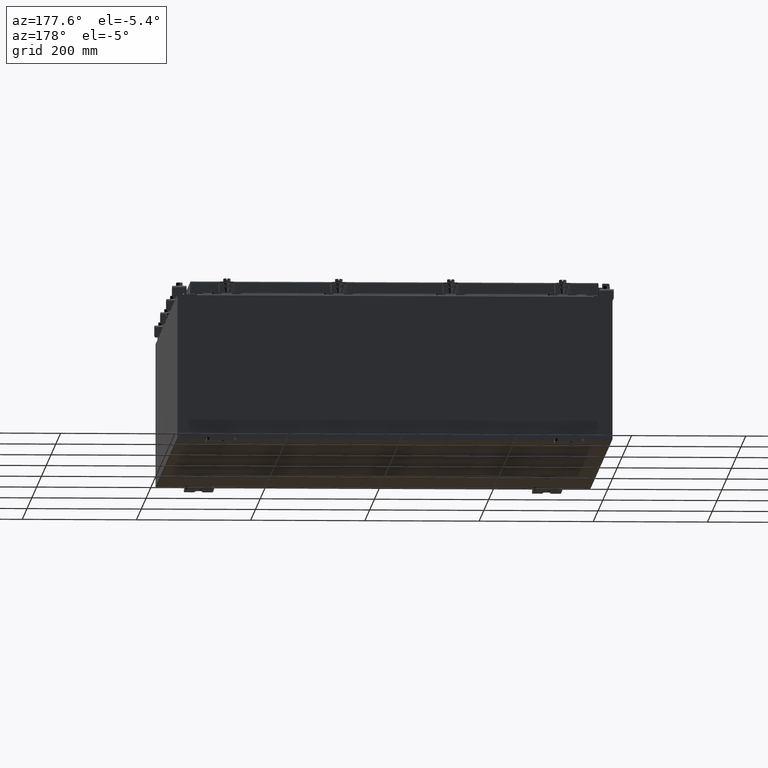
[diagram: clean part render]
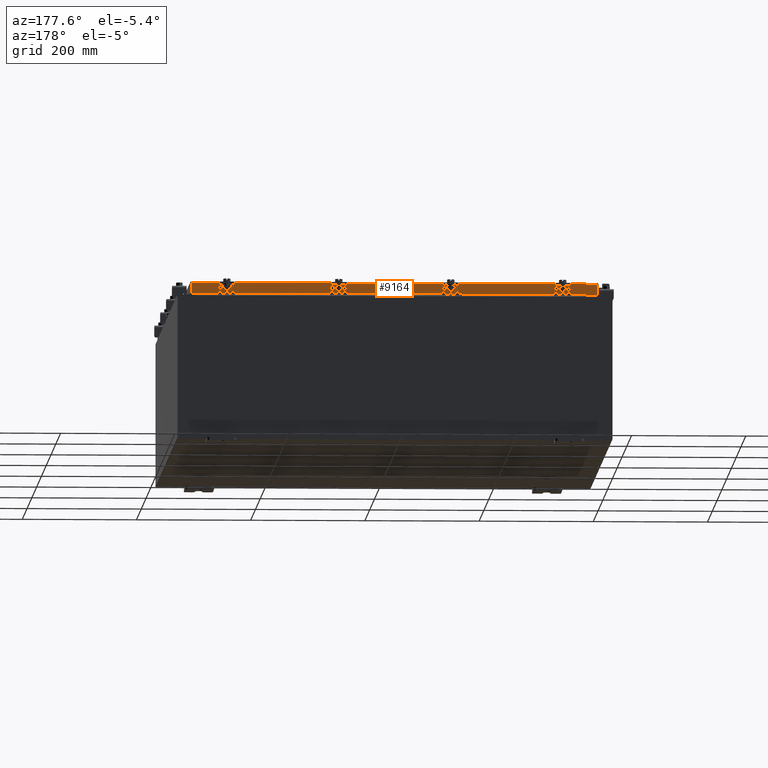
[diagram: same view with one face highlighted and labeled with its STEP entity id]
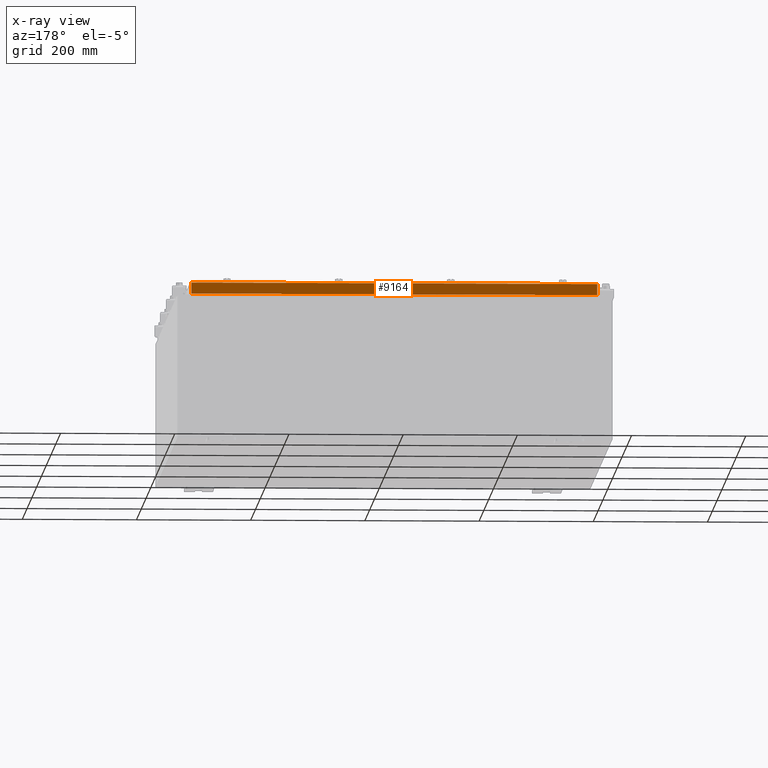
[diagram: x-ray of the same camera — body ghosted, the highlighted face saturated]
A machine part, auxiliary view. The second image highlights one B-rep face of the part: STEP entity #9164.
The next image is the same camera in x-ray: the body ghosted, the highlighted face saturated — about 0% of this face is hidden behind the body in this view.
In plain terms, the highlighted planar face has unit normal (0, -1, -0).
Its self-contained STEP definition (entity closure, byte-faithful):
#34 = EDGE_CURVE ( 'NONE', #1283, #8137, #4734, .T. ) ;
#757 = CARTESIAN_POINT ( 'NONE',  ( 13.98915786437626700, 17.09399999999999800, 4.844676449176206800E-014 ) ) ;
#1240 = ORIENTED_EDGE ( 'NONE', *, *, #24051, .F. ) ;
#1283 = VERTEX_POINT ( 'NONE', #18034 ) ;
#1959 = VECTOR ( 'NONE', #17901, 39.37007874015748100 ) ;
#2000 = ORIENTED_EDGE ( 'NONE', *, *, #6721, .F. ) ;
#2170 = VERTEX_POINT ( 'NONE', #5094 ) ;
#2323 = VECTOR ( 'NONE', #12570, 39.37007874015748100 ) ;
#3112 = ORIENTED_EDGE ( 'NONE', *, *, #34, .T. ) ;
#4734 = LINE ( 'NONE', #757, #9169 ) ;
#4885 = EDGE_CURVE ( 'NONE', #24463, #16809, #12599, .T. ) ;
#5045 = VECTOR ( 'NONE', #8421, 39.37007874015748100 ) ;
#5094 = CARTESIAN_POINT ( 'NONE',  ( -13.98915786437626900, 17.09399999999999800, -0.8500000000000032000 ) ) ;
#5437 = AXIS2_PLACEMENT_3D ( 'NONE', #19718, #21617, #10340 ) ;
#6495 = DIRECTION ( 'NONE',  ( 0.0000000000000000000, 2.818880942772347100E-015, -1.000000000000000000 ) ) ;
#6566 = PLANE ( 'NONE',  #5437 ) ;
#6721 = EDGE_CURVE ( 'NONE', #16809, #8137, #10071, .T. ) ;
#6885 = DIRECTION ( 'NONE',  ( -1.000000000000000000, -1.367515671240777000E-031, -7.762034361881699600E-017 ) ) ;
#7853 = CARTESIAN_POINT ( 'NONE',  ( -13.23915786437626400, 17.09399999999999800, -0.8500000000000040900 ) ) ;
#8137 = VERTEX_POINT ( 'NONE', #15362 ) ;
#8216 = VECTOR ( 'NONE', #6885, 39.37007874015748100 ) ;
#8421 = DIRECTION ( 'NONE',  ( 1.000000000000000000, -4.379057701015054300E-047, 1.261330583805776300E-016 ) ) ;
#8603 = EDGE_CURVE ( 'NONE', #2170, #24463, #22412, .T. ) ;
#9164 = ADVANCED_FACE ( 'NONE', ( #21796 ), #6566, .F. ) ;
#9169 = VECTOR ( 'NONE', #6495, 39.37007874015748100 ) ;
#9378 = EDGE_LOOP ( 'NONE', ( #1240, #3112, #2000, #10789, #19095, #15923 ) ) ;
#10071 = LINE ( 'NONE', #23394, #5045 ) ;
#10340 = DIRECTION ( 'NONE',  ( 0.0000000000000000000, 2.818880942772347100E-015, -1.000000000000000000 ) ) ;
#10656 = CARTESIAN_POINT ( 'NONE',  ( -14.07799999999999800, 17.09399999999999800, -0.08770000000000007000 ) ) ;
#10681 = CARTESIAN_POINT ( 'NONE',  ( -14.07799999999999800, 17.09399999999999800, -0.8500000000000032000 ) ) ;
#10789 = ORIENTED_EDGE ( 'NONE', *, *, #4885, .F. ) ;
#12570 = DIRECTION ( 'NONE',  ( 1.000000000000000000, -4.379057701015054300E-047, 1.261330583805776300E-016 ) ) ;
#12599 = LINE ( 'NONE', #14118, #1959 ) ;
#12818 = VECTOR ( 'NONE', #17494, 39.37007874015748100 ) ;
#13418 = LINE ( 'NONE', #15629, #12818 ) ;
#13435 = CARTESIAN_POINT ( 'NONE',  ( -13.98915786437626700, 17.09399999999999800, -0.08769999999999897300 ) ) ;
#14118 = CARTESIAN_POINT ( 'NONE',  ( -13.23915786437626400, 17.09399999999999800, -0.8500000000000040900 ) ) ;
#15243 = EDGE_CURVE ( 'NONE', #18710, #2170, #13418, .T. ) ;
#15362 = CARTESIAN_POINT ( 'NONE',  ( 13.98915786437626500, 17.09399999999999800, -0.8499999999999996400 ) ) ;
#15629 = CARTESIAN_POINT ( 'NONE',  ( -13.98915786437626900, 17.09399999999999800, -0.07469999999999978000 ) ) ;
#15923 = ORIENTED_EDGE ( 'NONE', *, *, #15243, .F. ) ;
#16809 = VERTEX_POINT ( 'NONE', #19363 ) ;
#17494 = DIRECTION ( 'NONE',  ( -0.0000000000000000000, 2.818880942772347100E-015, -1.000000000000000000 ) ) ;
#17901 = DIRECTION ( 'NONE',  ( 1.000000000000000000, -0.0000000000000000000, -0.0000000000000000000 ) ) ;
#18034 = CARTESIAN_POINT ( 'NONE',  ( 13.98915786437626500, 17.09399999999999800, -0.08769999999999787700 ) ) ;
#18194 = LINE ( 'NONE', #10656, #8216 ) ;
#18710 = VERTEX_POINT ( 'NONE', #13435 ) ;
#19095 = ORIENTED_EDGE ( 'NONE', *, *, #8603, .F. ) ;
#19363 = CARTESIAN_POINT ( 'NONE',  ( 13.23915786437625100, 17.09399999999999800, -0.8500000000000040900 ) ) ;
#19718 = CARTESIAN_POINT ( 'NONE',  ( -6.077841349889359500E-030, 17.09399999999999800, 4.844676449176206800E-014 ) ) ;
#21617 = DIRECTION ( 'NONE',  ( 3.555540745226020900E-031, -1.000000000000000000, -2.818880942772347100E-015 ) ) ;
#21796 = FACE_OUTER_BOUND ( 'NONE', #9378, .T. ) ;
#22412 = LINE ( 'NONE', #10681, #2323 ) ;
#23394 = CARTESIAN_POINT ( 'NONE',  ( -14.07799999999999800, 17.09399999999999800, -0.8500000000000032000 ) ) ;
#24051 = EDGE_CURVE ( 'NONE', #1283, #18710, #18194, .T. ) ;
#24463 = VERTEX_POINT ( 'NONE', #7853 ) ;